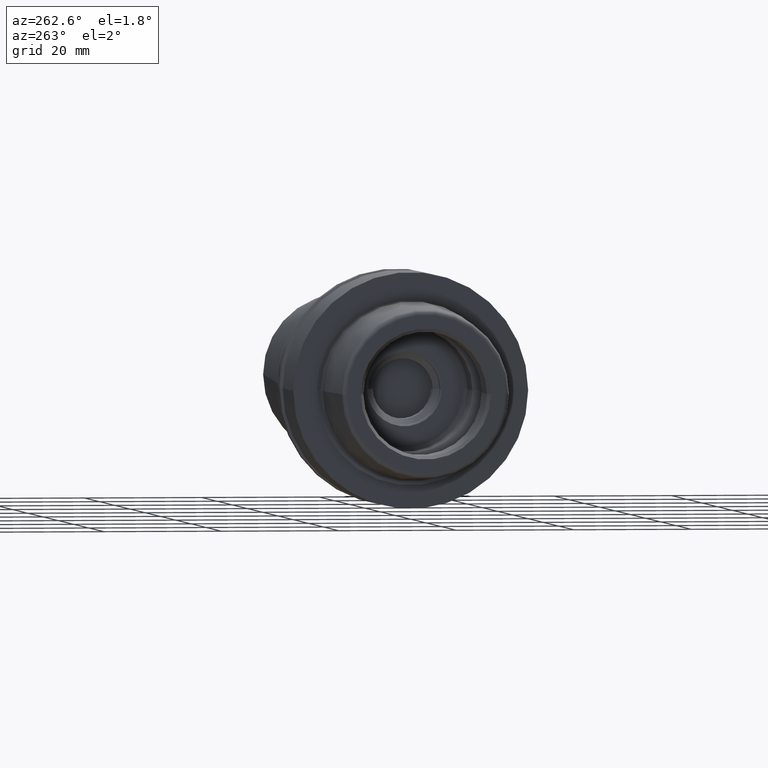
[diagram: clean part render]
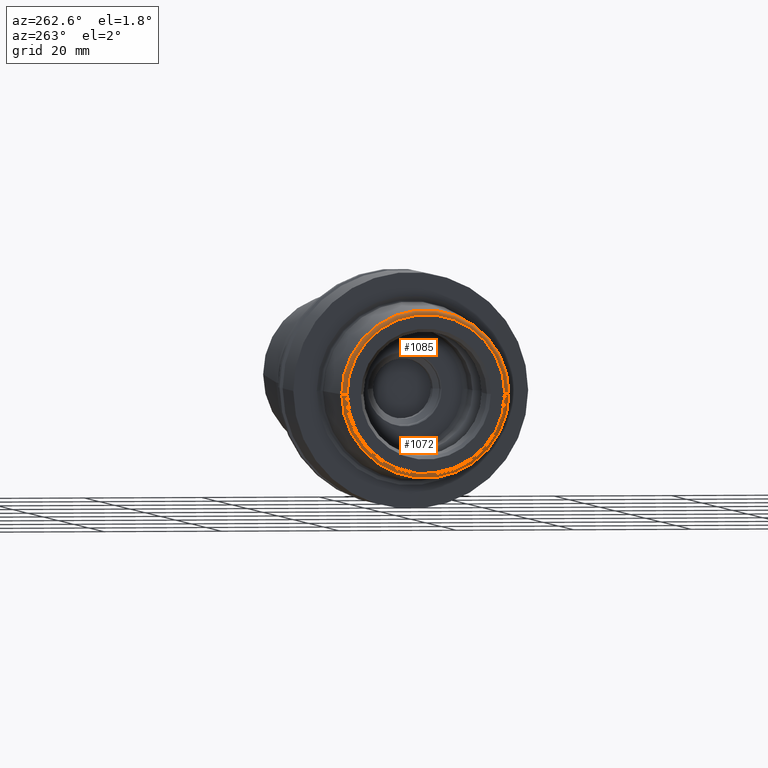
[diagram: same view with one multi-face feature highlighted, each face labeled with its STEP entity id]
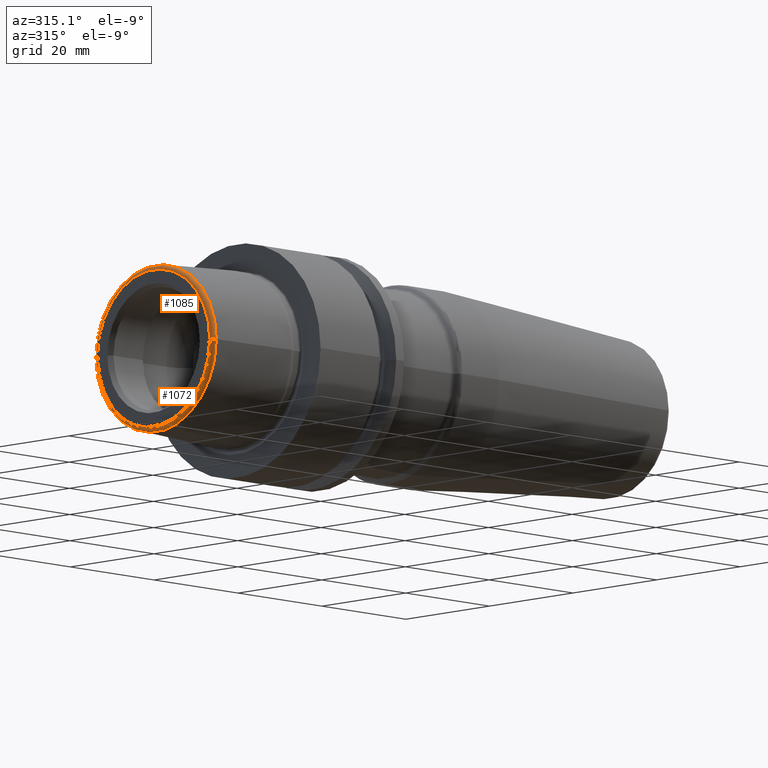
[diagram: same view with one multi-face feature highlighted, each face labeled with its STEP entity id]
A machine part, auxiliary view. The highlighted faces form ONE feature: a constant-radius fillet chain: 2 tangent blend faces with common blend radius 0.8 mm. The faces share edges in the B-rep.
A second angle (auxiliary view) of the same feature is appended — it is thin or edge-on in the first view.
Their STEP definitions:
[1] entity #1085 (Torus):
#38=CARTESIAN_POINT('',(-1.91E1,1.344598662523E1,0.E0));
#39=DIRECTION('',(0.E0,0.E0,1.E0));
#40=DIRECTION('',(-5.003724236654E-2,9.987473526255E-1,0.E0));
#41=AXIS2_PLACEMENT_3D('',#38,#39,#40);
#43=CARTESIAN_POINT('',(-1.91E1,-1.344598662523E1,0.E0));
#44=DIRECTION('',(0.E0,0.E0,-1.E0));
#45=DIRECTION('',(-5.003724236654E-2,-9.987473526255E-1,0.E0));
#46=AXIS2_PLACEMENT_3D('',#43,#44,#45);
#53=CARTESIAN_POINT('',(-1.914002979389E1,0.E0,0.E0));
#54=DIRECTION('',(1.E0,0.E0,0.E0));
#55=DIRECTION('',(0.E0,1.E0,0.E0));
#56=AXIS2_PLACEMENT_3D('',#53,#54,#55);
#63=CARTESIAN_POINT('',(-1.99E1,0.E0,0.E0));
#64=DIRECTION('',(1.E0,0.E0,0.E0));
#65=DIRECTION('',(0.E0,1.E0,0.E0));
#66=AXIS2_PLACEMENT_3D('',#63,#64,#65);
#832=CARTESIAN_POINT('',(-1.914002979389E1,1.424498450733E1,0.E0));
#833=VERTEX_POINT('',#832);
#834=CARTESIAN_POINT('',(-1.914002979389E1,-1.424498450733E1,0.E0));
#835=VERTEX_POINT('',#834);
#840=CARTESIAN_POINT('',(-1.99E1,1.344598662523E1,0.E0));
#841=VERTEX_POINT('',#840);
#842=CARTESIAN_POINT('',(-1.99E1,-1.344598662523E1,0.E0));
#843=VERTEX_POINT('',#842);
#1073=CARTESIAN_POINT('',(-1.91E1,0.E0,0.E0));
#1074=DIRECTION('',(1.E0,0.E0,0.E0));
#1075=DIRECTION('',(0.E0,-1.E0,0.E0));
#1076=AXIS2_PLACEMENT_3D('',#1073,#1074,#1075);
#1077=TOROIDAL_SURFACE('',#1076,1.344598662523E1,8.E-1);
#1078=ORIENTED_EDGE('',*,*,#1063,.F.);
#1079=ORIENTED_EDGE('',*,*,#1009,.T.);
#1080=ORIENTED_EDGE('',*,*,#1067,.T.);
#1082=ORIENTED_EDGE('',*,*,#1081,.F.);
#1083=EDGE_LOOP('',(#1078,#1079,#1080,#1082));
#1084=FACE_OUTER_BOUND('',#1083,.F.);
#1085=ADVANCED_FACE('',(#1084),#1077,.T.);
#42=CIRCLE('',#41,8.E-1);
#47=CIRCLE('',#46,8.E-1);
#57=CIRCLE('',#56,1.424498450733E1);
#67=CIRCLE('',#66,1.344598662523E1);
#1009=EDGE_CURVE('',#833,#835,#57,.T.);
#1063=EDGE_CURVE('',#833,#841,#42,.T.);
#1067=EDGE_CURVE('',#835,#843,#47,.T.);
#1081=EDGE_CURVE('',#841,#843,#67,.T.);
[2] entity #1072 (Torus):
#38=CARTESIAN_POINT('',(-1.91E1,1.344598662523E1,0.E0));
#39=DIRECTION('',(0.E0,0.E0,1.E0));
#40=DIRECTION('',(-5.003724236654E-2,9.987473526255E-1,0.E0));
#41=AXIS2_PLACEMENT_3D('',#38,#39,#40);
#43=CARTESIAN_POINT('',(-1.91E1,-1.344598662523E1,0.E0));
#44=DIRECTION('',(0.E0,0.E0,-1.E0));
#45=DIRECTION('',(-5.003724236654E-2,-9.987473526255E-1,0.E0));
#46=AXIS2_PLACEMENT_3D('',#43,#44,#45);
#48=CARTESIAN_POINT('',(-1.914002979389E1,0.E0,0.E0));
#49=DIRECTION('',(-1.E0,0.E0,0.E0));
#50=DIRECTION('',(0.E0,1.E0,0.E0));
#51=AXIS2_PLACEMENT_3D('',#48,#49,#50);
#58=CARTESIAN_POINT('',(-1.99E1,0.E0,0.E0));
#59=DIRECTION('',(-1.E0,0.E0,0.E0));
#60=DIRECTION('',(0.E0,1.E0,0.E0));
#61=AXIS2_PLACEMENT_3D('',#58,#59,#60);
#832=CARTESIAN_POINT('',(-1.914002979389E1,1.424498450733E1,0.E0));
#833=VERTEX_POINT('',#832);
#834=CARTESIAN_POINT('',(-1.914002979389E1,-1.424498450733E1,0.E0));
#835=VERTEX_POINT('',#834);
#840=CARTESIAN_POINT('',(-1.99E1,1.344598662523E1,0.E0));
#841=VERTEX_POINT('',#840);
#842=CARTESIAN_POINT('',(-1.99E1,-1.344598662523E1,0.E0));
#843=VERTEX_POINT('',#842);
#1058=CARTESIAN_POINT('',(-1.91E1,0.E0,0.E0));
#1059=DIRECTION('',(1.E0,0.E0,0.E0));
#1060=DIRECTION('',(0.E0,-1.E0,0.E0));
#1061=AXIS2_PLACEMENT_3D('',#1058,#1059,#1060);
#1062=TOROIDAL_SURFACE('',#1061,1.344598662523E1,8.E-1);
#1064=ORIENTED_EDGE('',*,*,#1063,.T.);
#1066=ORIENTED_EDGE('',*,*,#1065,.T.);
#1068=ORIENTED_EDGE('',*,*,#1067,.F.);
#1069=ORIENTED_EDGE('',*,*,#1052,.F.);
#1070=EDGE_LOOP('',(#1064,#1066,#1068,#1069));
#1071=FACE_OUTER_BOUND('',#1070,.F.);
#1072=ADVANCED_FACE('',(#1071),#1062,.T.);
#42=CIRCLE('',#41,8.E-1);
#47=CIRCLE('',#46,8.E-1);
#52=CIRCLE('',#51,1.424498450733E1);
#62=CIRCLE('',#61,1.344598662523E1);
#1052=EDGE_CURVE('',#833,#835,#52,.T.);
#1063=EDGE_CURVE('',#833,#841,#42,.T.);
#1065=EDGE_CURVE('',#841,#843,#62,.T.);
#1067=EDGE_CURVE('',#835,#843,#47,.T.);